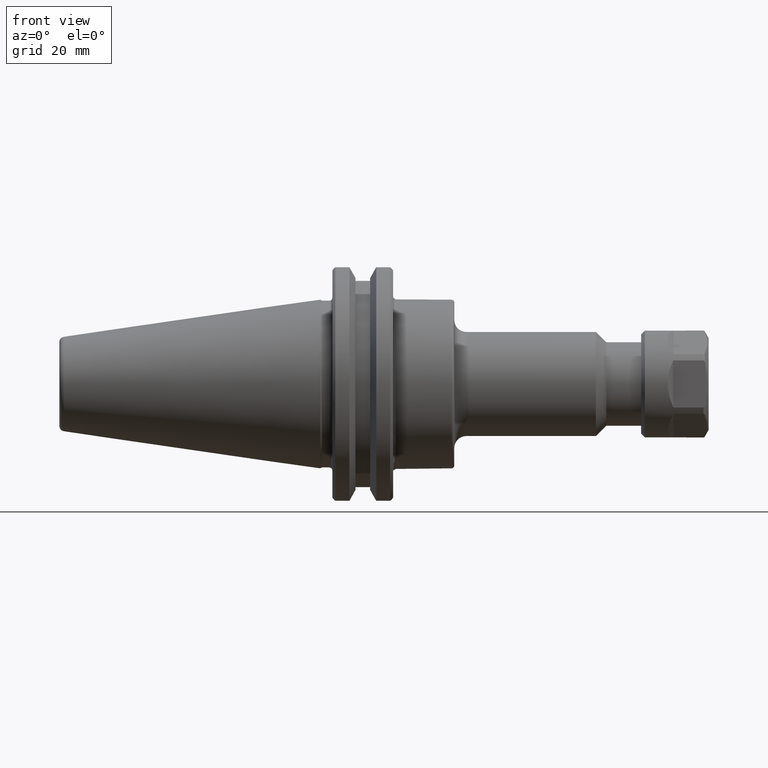
[diagram: clean part render]
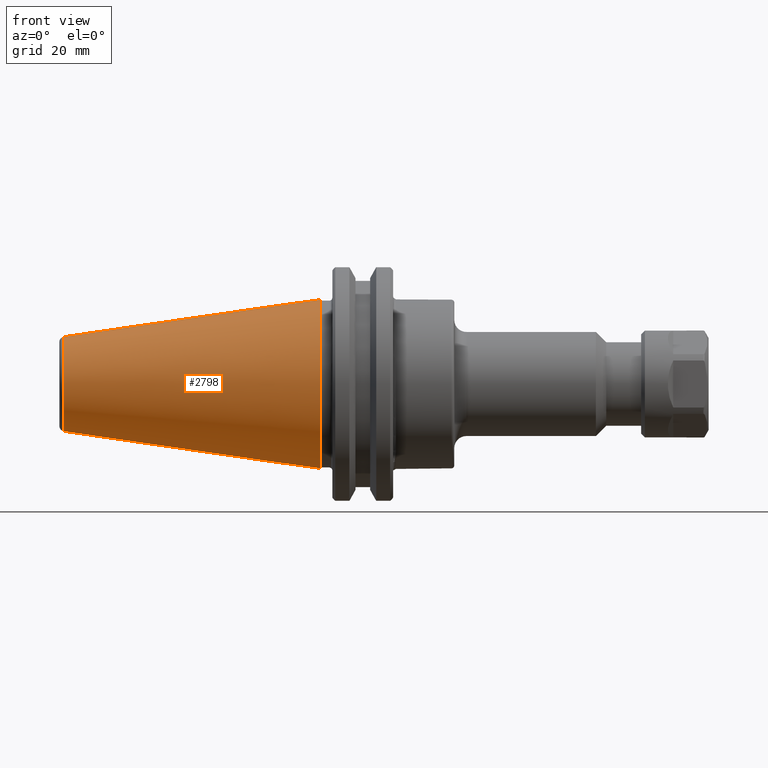
[diagram: same view with one face highlighted and labeled with its STEP entity id]
A machine part, front view. The second image highlights one B-rep face of the part: STEP entity #2798.
In plain terms, the highlighted conical surface has half-angle 8.297 deg.
Its self-contained STEP definition (entity closure, byte-faithful):
#393=CONICAL_SURFACE('',#3057,0.679076388285061,8.297);
#609=FACE_BOUND('',#966,.T.);
#740=FACE_OUTER_BOUND('',#965,.T.);
#965=EDGE_LOOP('',(#2278));
#966=EDGE_LOOP('',(#2279));
#1127=CIRCLE('',#3044,0.875);
#1133=CIRCLE('',#3055,0.489891260103121);
#1395=VERTEX_POINT('',#5695);
#1401=VERTEX_POINT('',#5712);
#1723=EDGE_CURVE('',#1395,#1395,#1127,.T.);
#1729=EDGE_CURVE('',#1401,#1401,#1133,.T.);
#2278=ORIENTED_EDGE('',*,*,#1723,.F.);
#2279=ORIENTED_EDGE('',*,*,#1729,.F.);
#2798=ADVANCED_FACE('',(#740,#609),#393,.T.);
#3044=AXIS2_PLACEMENT_3D('',#5696,#3615,#3616);
#3055=AXIS2_PLACEMENT_3D('',#5713,#3637,#3638);
#3057=AXIS2_PLACEMENT_3D('',#5715,#3641,#3642);
#3615=DIRECTION('center_axis',(1.,1.16523256636576E-36,0.));
#3616=DIRECTION('ref_axis',(1.62451355720802E-13,1.,0.));
#3637=DIRECTION('center_axis',(-1.,3.56891999987323E-15,8.18993717006067E-29));
#3638=DIRECTION('ref_axis',(-3.56891999987323E-15,-1.,-2.8330424671867E-30));
#3641=DIRECTION('center_axis',(1.,1.16523256636576E-36,0.));
#3642=DIRECTION('ref_axis',(1.62451355720802E-13,1.,0.));
#5695=CARTESIAN_POINT('',(0.,0.875,0.));
#5696=CARTESIAN_POINT('Origin',(0.,-1.60802094158475E-36,0.));
#5712=CARTESIAN_POINT('',(-2.64079243702511,0.48989126010311,-1.19984789960865E-16));
#5713=CARTESIAN_POINT('Origin',(-2.64079243702511,-1.13207780857447E-14,
-5.99923949804333E-17));
#5715=CARTESIAN_POINT('Origin',(-1.3435,-3.17351089449714E-36,0.));